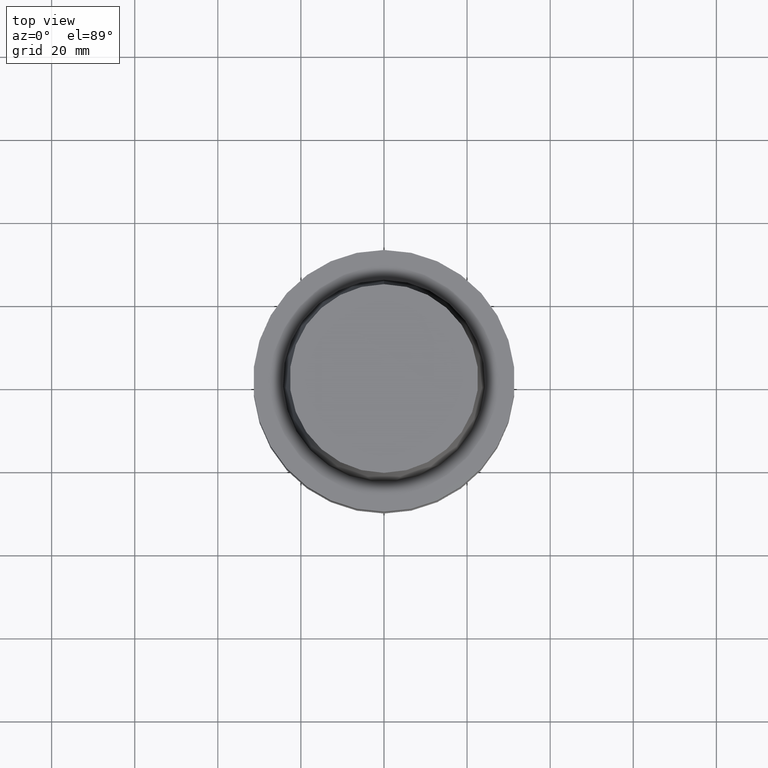
[diagram: clean part render]
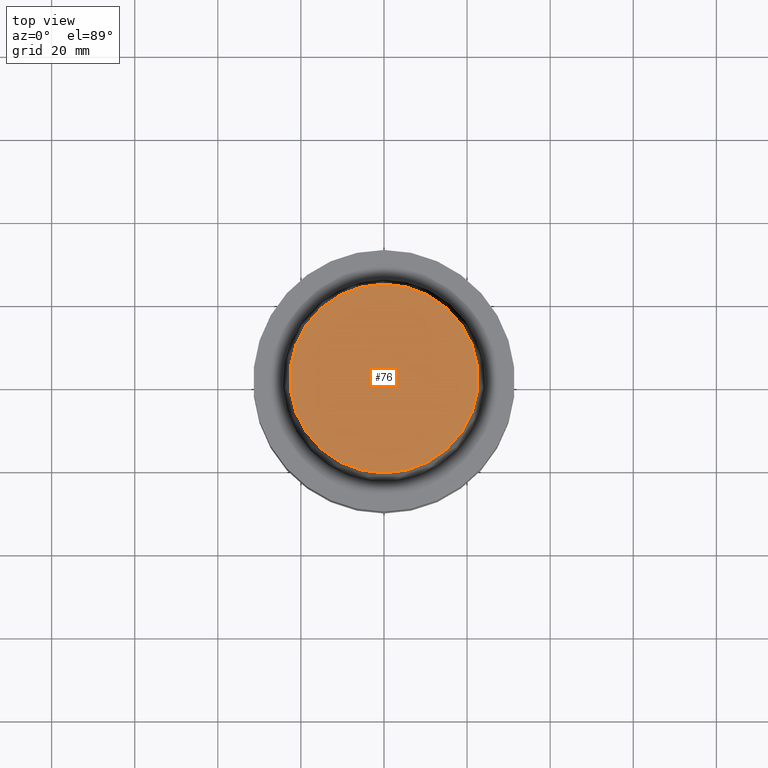
[diagram: same view with one face highlighted and labeled with its STEP entity id]
A machine part, top view. The second image highlights one B-rep face of the part: STEP entity #76.
In plain terms, the highlighted planar face has unit normal (-0, -0, 1).
Its self-contained STEP definition (entity closure, byte-faithful):
#76=ADVANCED_FACE('',(#98),#99,.T.);
#98=FACE_OUTER_BOUND('',#156,.T.);
#99=PLANE('',#157);
#156=EDGE_LOOP('',(#216));
#157=AXIS2_PLACEMENT_3D('',#217,#218,#219);
#216=ORIENTED_EDGE('',*,*,#311,.F.);
#217=CARTESIAN_POINT('',(-1.95943487863576E-015,11.3574999984407,32.0));
#218=DIRECTION('',(-6.12323399573677E-017,-7.48080119807009E-016,1.0));
#219=DIRECTION('',(5.06338489421401E-032,-1.0,-7.48080119807009E-016));
#311=EDGE_CURVE('',#331,#331,#332,.T.);
#331=VERTEX_POINT('',#369);
#332=CIRCLE('',#370,22.7149999968815);
#369=CARTESIAN_POINT('',(-1.95943487863577E-015,22.7149999968815,32.0));
#370=AXIS2_PLACEMENT_3D('',#408,#409,#410);
#408=CARTESIAN_POINT('',(-1.95943487863576E-015,-3.91886975727153E-015,32.0));
#409=DIRECTION('',(6.12323399573677E-017,1.22464679914735E-016,-1.0));
#410=DIRECTION('',(-1.23259516440783E-032,1.0,1.22464679914735E-016));